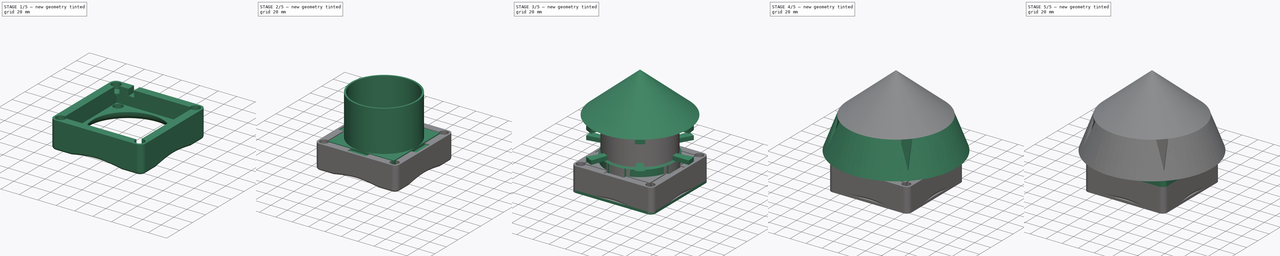
[diagram: build sequence overview — one tinted view per stage of 5, left to right]
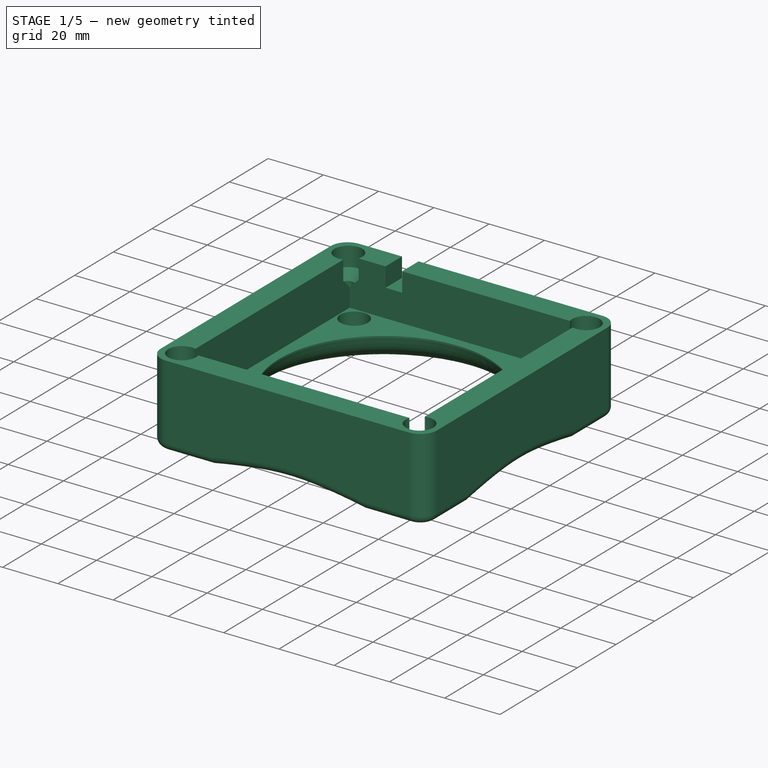
[diagram: stage 1 of 5 — iso view after this stage's code; geometry added in this stage tinted green]
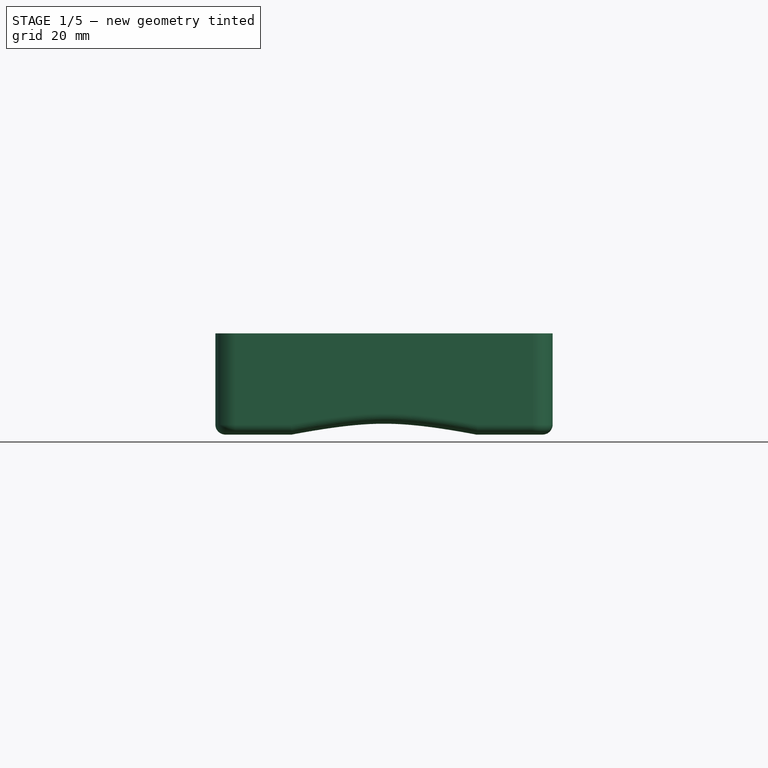
[diagram: stage 1 of 5 — front view after this stage's code; geometry added in this stage tinted green]
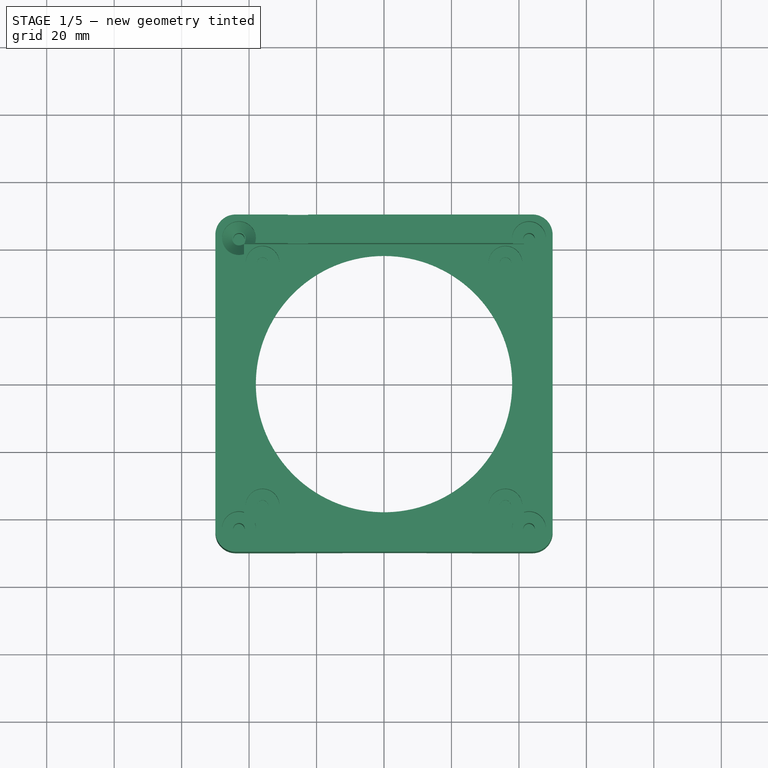
[diagram: stage 1 of 5 — top view after this stage's code; geometry added in this stage tinted green]
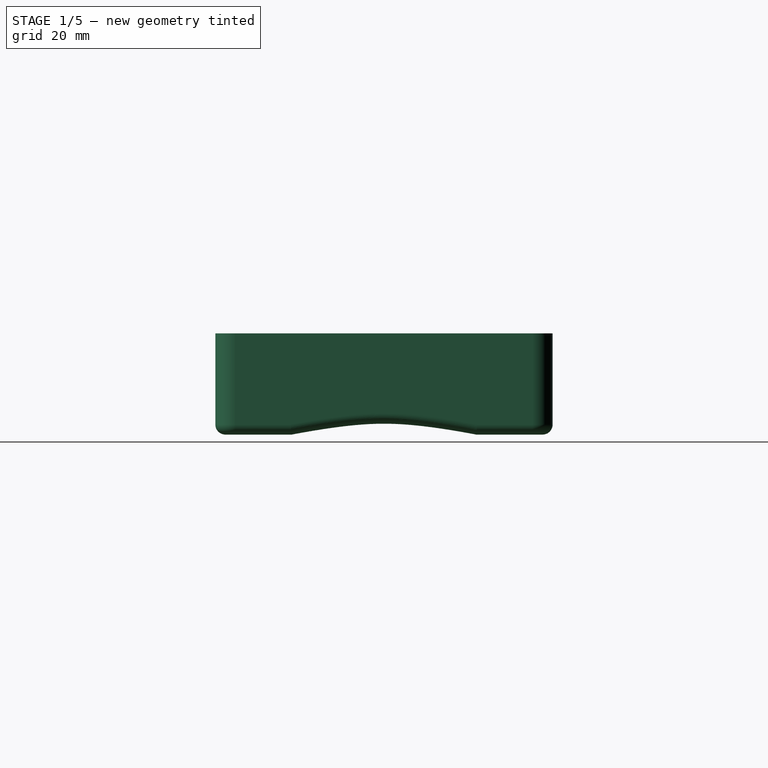
[diagram: stage 1 of 5 — right view after this stage's code; geometry added in this stage tinted green]
FCSTD DOCUMENT  (FreeCAD 0.19R)
Label: air-fan-income
License: All rights reserved
LicenseURL: http://en.wikipedia.org/wiki/All_rights_reserved
objects: Sketcher::SketchObject×36, PartDesign::Pocket×16, PartDesign::Pad×10, PartDesign::Chamfer×8, PartDesign::PolarPattern×7, PartDesign::Fillet×6, PartDesign::Body×6, PartDesign::Revolution×5, Part::Loft×2, Part::Cut×1, PartDesign::FeatureBase×1, PartDesign::Groove×1
note: 145 computed .brp shape members not serialized (recipe doc carries the construction recipe); baked Part::Feature solids carry a one-line shape summary decoded from their .brp

FEATURE [PartDesign::Body] Body001  label="top"
  Group = -> [Sketch006,Pad002,Sketch007,Pad003,Sketch019,Pad010,Fillet001,Sketch020,Pocket004,Chamfer,Chamfer002,Sketch021,Revolution,PolarPattern,Sketch022,Revolution004,PolarPattern006,Sketch023,Revolution005,Sketch024,Pad011,Sketch030,Pocket006]
  Origin = -> Origin001
  Placement = pos=(0,0,40) rot=(0,0,1;0rad)
  Tip = -> Pocket006
FEATURE [Sketcher::SketchObject] Sketch031
  FullyConstrained = false
  MapMode = 5
  Support = -> [XY_Plane004]
  sketch-geometry (4):
    g0: LineSegment StartX=-50 StartY=50 StartZ=0 EndX=50 EndY=50 EndZ=0
    g1: LineSegment StartX=50 StartY=50 StartZ=0 EndX=50 EndY=-50 EndZ=0
    g2: LineSegment StartX=50 StartY=-50 StartZ=0 EndX=-50 EndY=-50 EndZ=0
    g3: LineSegment StartX=-50 StartY=-50 StartZ=0 EndX=-50 EndY=50 EndZ=0
  constraints (11):
    c: Coincident(g0,g1)
    c: Coincident(g1,g2)
    c: Coincident(g2,g3)
    c: Coincident(g3,g0)
    c: Horizontal(g0)
    c: Horizontal(g2)
    c: Vertical(g1)
    c: Vertical(g3)
    c: DistanceX(g0,g0) = 100
    c: DistanceY(g1,g1) = 100
    c: Symmetric(g0,g1,g-1)
FEATURE [PartDesign::Pad] Pad012
  AllowMultiFace = false
  Direction = (1,1,1)
  Length = 30
  Length2 = 100
  Profile = -> Sketch031
  Reversed = true
  Type = 0
FEATURE [PartDesign::Fillet] Fillet002
  Base = -> Pad012 [Edge1,Edge2,Edge5,Edge8]
  BaseFeature = -> Pad012
  Radius = 6
  SupportTransform = false
FEATURE [Sketcher::SketchObject] Sketch032
  FullyConstrained = false
  MapMode = 5
  Placement = pos=(0,0,-30) rot=(1,0,0;3.14159rad)
  Support = -> [Fillet002]
  sketch-geometry (1):
    g0: Circle CenterX=0 CenterY=0 CenterZ=0 NormalX=0 NormalY=0 NormalZ=1 AngleXU=0 Radius=38
  constraints (2):
    c: Coincident(g0,g-1)
    c: Diameter(g0) = 76
FEATURE [PartDesign::Pocket] Pocket007
  AllowMultiFace = false
  BaseFeature = -> Fillet002
  Length = 30
  Length2 = 100
  Profile = -> Sketch032
  Type = 0
FEATURE [PartDesign::Body] Body005  label="cup-support"
  Group = -> [Sketch040,Pad013,Sketch041,Pocket014,Sketch044,Pocket017]
  Origin = -> Origin005
  Tip = -> Pocket017
FEATURE [Sketcher::SketchObject] Sketch045
  FullyConstrained = false
  MapMode = 5
  Support = -> [Pocket007]
  sketch-geometry (4):
    g0: LineSegment StartX=-41.5 StartY=41.5 StartZ=0 EndX=41.5 EndY=41.5 EndZ=0
    g1: LineSegment StartX=41.5 StartY=41.5 StartZ=0 EndX=41.5 EndY=-41.5 EndZ=0
    g2: LineSegment StartX=41.5 StartY=-41.5 StartZ=0 EndX=-41.5 EndY=-41.5 EndZ=0
    g3: LineSegment StartX=-41.5 StartY=-41.5 StartZ=0 EndX=-41.5 EndY=41.5 EndZ=0
  constraints (11):
    c: Coincident(g0,g1)
    c: Coincident(g1,g2)
    c: Coincident(g2,g3)
    c: Coincident(g3,g0)
    c: Horizontal(g0)
    c: Horizontal(g2)
    c: Vertical(g1)
    c: Vertical(g3)
    c: Symmetric(g1,g0,g-1)
    c: Distance(g0) = 83
    c: Distance(g1) = 83
FEATURE [PartDesign::Pocket] Pocket018
  AllowMultiFace = false
  BaseFeature = -> Pocket007
  Length = 17
  Length2 = 100
  Profile = -> Sketch045
  Type = 0
FEATURE [Sketcher::SketchObject] Sketch046
  FullyConstrained = false
  MapMode = 5
  Support = -> [Pocket018]
  sketch-geometry (8):
    g0: Circle CenterX=-43 CenterY=43 CenterZ=0 NormalX=0 NormalY=0 NormalZ=1 AngleXU=0 Radius=1.7
    g1: Circle CenterX=-36 CenterY=36 CenterZ=0 NormalX=0 NormalY=0 NormalZ=1 AngleXU=0 Radius=1.7
    g2: Circle CenterX=36 CenterY=36 CenterZ=0 NormalX=0 NormalY=0 NormalZ=1 AngleXU=0 Radius=1.7
    g3: Circle CenterX=43 CenterY=43 CenterZ=0 NormalX=0 NormalY=0 NormalZ=1 AngleXU=0 Radius=1.7
    g4: Circle CenterX=36 CenterY=-36 CenterZ=0 NormalX=0 NormalY=0 NormalZ=1 AngleXU=0 Radius=1.7
    g5: Circle CenterX=43 CenterY=-43 CenterZ=0 NormalX=0 NormalY=0 NormalZ=1 AngleXU=0 Radius=1.7
    g6: Circle CenterX=-36 CenterY=-36 CenterZ=0 NormalX=0 NormalY=0 NormalZ=1 AngleXU=0 Radius=1.7
    g7: Circle CenterX=-43 CenterY=-43 CenterZ=0 NormalX=0 NormalY=0 NormalZ=1 AngleXU=0 Radius=1.7
  constraints (24):
    c: DistanceX(g1,g-1) = 36
    c: DistanceY(g-1,g1) = 36
    c: DistanceY(g-1,g2) = 36
    c: DistanceY(g4,g-1) = 36
    c: DistanceY(g6,g-1) = 36
    c: DistanceX(g6,g-1) = 36
    c: DistanceX(g-1,g4) = 36
    c: DistanceX(g-1,g2) = 36
    c: DistanceX(g0,g1) = 7
    c: DistanceY(g1,g0) = 7
    c: DistanceY(g2,g3) = 7
    c: DistanceY(g5,g4) = 7
    c: DistanceY(g7,g6) = 7
    c: DistanceX(g7,g6) = 7
    c: DistanceX(g4,g5) = 7
    c: DistanceX(g2,g3) = 7
    c: Diameter(g3) = 3.4
    c: Diameter(g2) = 3.4
    c: Diameter(g4) = 3.4
    c: Diameter(g5) = 3.4
    c: Diameter(g6) = 3.4
    c: Diameter(g7) = 3.4
    c: Diameter(g1) = 3.4
    c: Diameter(g0) = 3.4
FEATURE [PartDesign::Pocket] Pocket019
  AllowMultiFace = false
  BaseFeature = -> Pocket018
  Length = 27
  Length2 = 100
  Profile = -> Sketch046
  Type = 0
FEATURE [Sketcher::SketchObject] Sketch047
  ExternalGeometry = -> [Pocket019]
  FullyConstrained = false
  MapMode = 5
  Support = -> [Pocket019]
  sketch-geometry (4):
    g0: Circle CenterX=-43 CenterY=-43 CenterZ=0 NormalX=0 NormalY=0 NormalZ=1 AngleXU=0 Radius=5
    g1: Circle CenterX=43 CenterY=-43 CenterZ=0 NormalX=0 NormalY=0 NormalZ=1 AngleXU=0 Radius=5
    g2: Circle CenterX=43 CenterY=43 CenterZ=0 NormalX=0 NormalY=0 NormalZ=1 AngleXU=0 Radius=5
    g3: Circle CenterX=-43 CenterY=43 CenterZ=0 NormalX=0 NormalY=0 NormalZ=1 AngleXU=0 Radius=5
  constraints (8):
    c: Coincident(g0,g-6)
    c: Coincident(g1,g-5)
    c: Coincident(g2,g-4)
    c: Coincident(g3,g-3)
    c: Diameter(g0) = 10
    c: Diameter(g1) = 10
    c: Diameter(g2) = 10
    c: Diameter(g3) = 10
FEATURE [PartDesign::Pocket] Pocket020
  AllowMultiFace = false
  BaseFeature = -> Pocket019
  Length = 10
  Length2 = 100
  Profile = -> Sketch047
  Type = 0
FEATURE [Sketcher::SketchObject] Sketch048
  ExternalGeometry = -> [Pocket020]
  FullyConstrained = false
  MapMode = 5
  Placement = pos=(0,0,-17) rot=(0,0,1;0rad)
  Support = -> [Pocket020]
  sketch-geometry (4):
    g0: Circle CenterX=-36 CenterY=36 CenterZ=0 NormalX=0 NormalY=0 NormalZ=1 AngleXU=0 Radius=5
    g1: Circle CenterX=36 CenterY=36 CenterZ=0 NormalX=0 NormalY=0 NormalZ=1 AngleXU=0 Radius=5
    g2: Circle CenterX=36 CenterY=-36 CenterZ=0 NormalX=0 NormalY=0 NormalZ=1 AngleXU=0 Radius=5
    g3: Circle CenterX=-36 CenterY=-36 CenterZ=0 NormalX=0 NormalY=0 NormalZ=1 AngleXU=0 Radius=5
  constraints (8):
    c: Coincident(g0,g-3)
    c: Coincident(g1,g-4)
    c: Coincident(g2,g-5)
    c: Coincident(g3,g-6)
    c: Diameter(g3) = 10
    c: Diameter(g2) = 10
    c: Diameter(g0) = 10
    c: Diameter(g1) = 10
FEATURE [PartDesign::Pocket] Pocket021
  AllowMultiFace = false
  BaseFeature = -> Pocket020
  Length = 7
  Length2 = 100
  Profile = -> Sketch048
  Type = 0
FEATURE [Sketcher::SketchObject] Sketch049
  ExternalGeometry = -> [Pocket021]
  FullyConstrained = false
  MapMode = 5
  Support = -> [Pocket021]
  sketch-geometry (4):
    g0: LineSegment StartX=-28.5 StartY=50 StartZ=0 EndX=-22.5 EndY=50 EndZ=0
    g1: LineSegment StartX=-22.5 StartY=50 StartZ=0 EndX=-22.5 EndY=41.5 EndZ=0
    g2: LineSegment StartX=-22.5 StartY=41.5 StartZ=0 EndX=-28.5 EndY=41.5 EndZ=0
    g3: LineSegment StartX=-28.5 StartY=41.5 StartZ=0 EndX=-28.5 EndY=50 EndZ=0
  constraints (12):
    c: Coincident(g0,g1)
    c: Coincident(g1,g2)
    c: Coincident(g2,g3)
    c: Coincident(g3,g0)
    c: Horizontal(g0)
    c: Horizontal(g2)
    c: Vertical(g1)
    c: Vertical(g3)
    c: PointOnObject(g0,g-4)
    c: PointOnObject(g1,g-5)
    c: DistanceX(g2,g2) = 6
    c: DistanceX(g-6,g1) = 19
FEATURE [PartDesign::Pocket] Pocket022
  AllowMultiFace = false
  BaseFeature = -> Pocket021
  Length = 7
  Length2 = 100
  Profile = -> Sketch049
  Type = 0
FEATURE [Sketcher::SketchObject] Sketch050
  AttachmentOffset = pos=(0,0,0) rot=(0,1,0;0.785398rad)
  FullyConstrained = false
  MapMode = 5
  Placement = pos=(0,0,0) rot=(0.862856,0.357407,0.357407;1.71777rad)
  Support = -> [XZ_Plane004]
  sketch-geometry (17):
    g0-g6: Circle x7 (B-spline internal-alignment scaffolding for g7; pole/knot coordinates omitted)
    g7: BSplineCurve PolesCount=7 KnotsCount=5 Degree=3 IsPeriodic=0
    g8-g12: GeomPoint x5 (B-spline internal-alignment scaffolding for g7; pole/knot coordinates omitted)
    g13: LineSegment StartX=-55.2515 StartY=-30.4636 StartZ=0 EndX=-24.8297 EndY=-40.4815 EndZ=0
    g14: LineSegment StartX=-24.8297 StartY=-40.4815 StartZ=0 EndX=-17.5661 EndY=-26.0281 EndZ=0
    g15: LineSegment StartX=-17.5661 StartY=-26.0281 StartZ=0 EndX=-31.5153 EndY=-13.5349 EndZ=0
    g16: LineSegment StartX=-31.5153 StartY=-13.5349 StartZ=0 EndX=-37.3688 EndY=-15.3042 EndZ=0
  constraints (9):
    c: Weight(g0) = 1
    c: Equal(g0, g1-g6) x6
    c: InternalAlignment(g0-g6 -> g7) x7
    c: InternalAlignment(g8-g12 -> g7) x5
    c: Coincident(g13,g7)
    c: Coincident(g13,g14)
    c: Coincident(g14,g15)
    c: Coincident(g15,g16)
    c: Coincident(g16,g7)
FEATURE [PartDesign::Groove] Groove
  AllowMultiFace = false
  Angle = 360
  Axis = (0,-2e-16,1)
  Base = (0,0,0)
  BaseFeature = -> Pocket022
  Profile = -> Sketch050
  ReferenceAxis = -> Sketch050 [V_Axis]
  Reversed = true
FEATURE [PartDesign::Fillet] Fillet003
  Base = -> Groove [Edge55,Edge46,Edge53,Edge8,Edge7,Edge48,Edge64,Edge50]
  BaseFeature = -> Groove
  Radius = 3
  SupportTransform = false
FEATURE [PartDesign::Chamfer] Chamfer003
  Angle = 45
  Base = -> Fillet003 [Edge104]
  BaseFeature = -> Fillet003
  ChamferType = 0
  FlipDirection = false
  Size = 3
  Size2 = 1
  SupportTransform = false
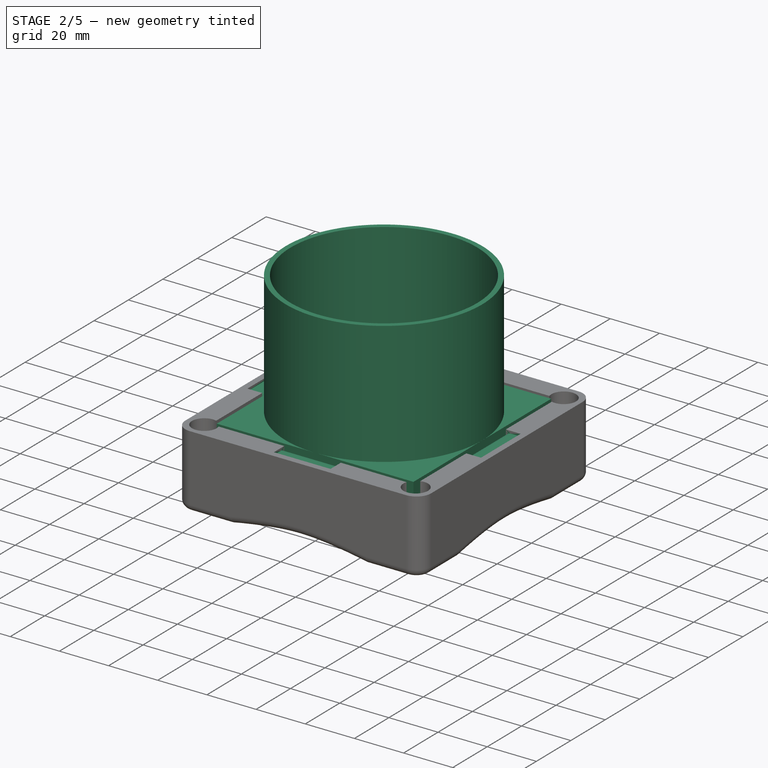
[diagram: stage 2 of 5 — iso view after this stage's code; geometry added in this stage tinted green]
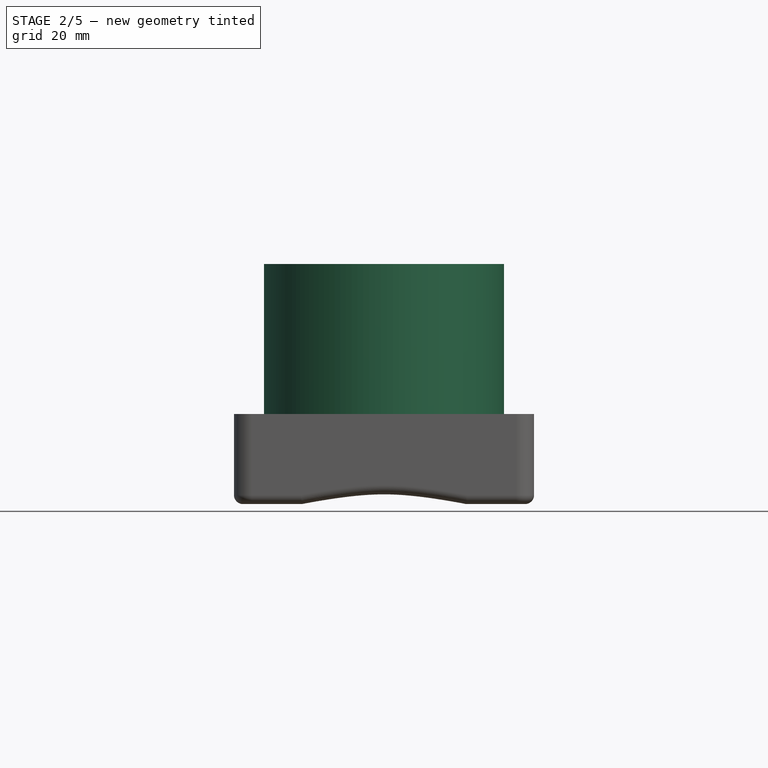
[diagram: stage 2 of 5 — front view after this stage's code; geometry added in this stage tinted green]
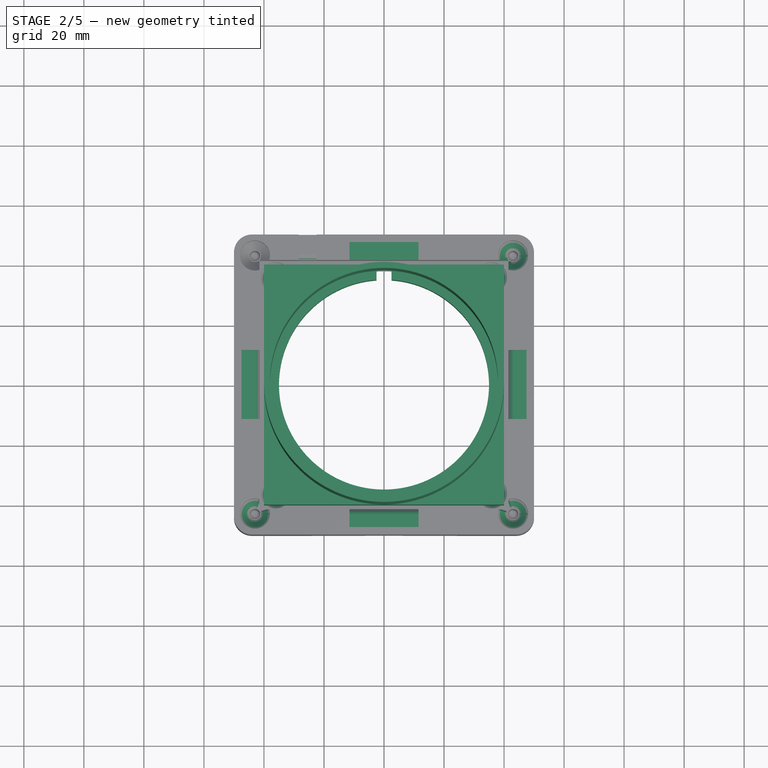
[diagram: stage 2 of 5 — top view after this stage's code; geometry added in this stage tinted green]
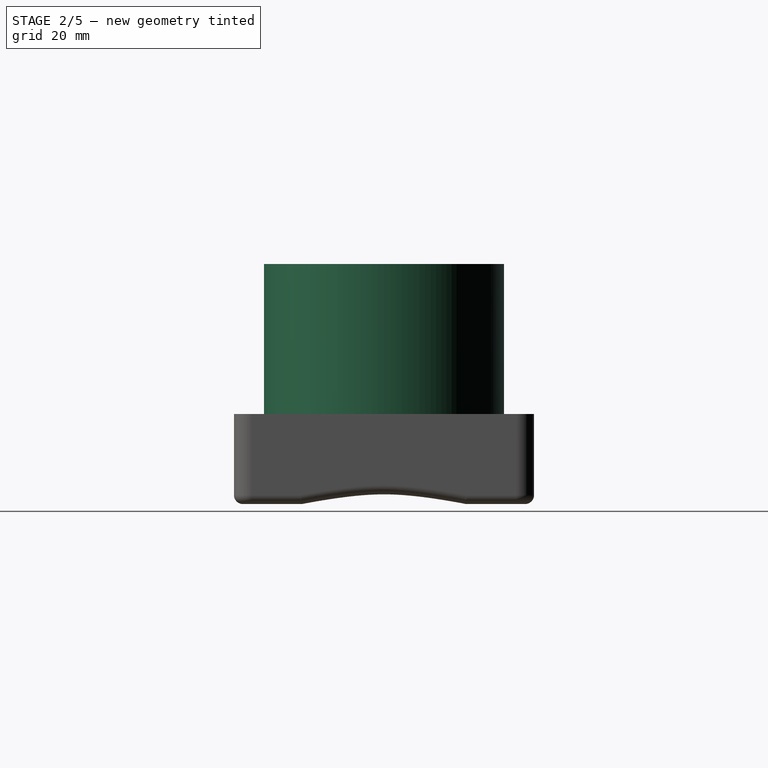
[diagram: stage 2 of 5 — right view after this stage's code; geometry added in this stage tinted green]
FEATURE [Sketcher::SketchObject] Sketch006
  FullyConstrained = false
  MapMode = 5
  Support = -> [XY_Plane001]
  sketch-geometry (2):
    g0: Circle CenterX=0 CenterY=0 CenterZ=0 NormalX=0 NormalY=0 NormalZ=1 AngleXU=0 Radius=40
    g1: Circle CenterX=0 CenterY=0 CenterZ=0 NormalX=0 NormalY=0 NormalZ=1 AngleXU=0 Radius=38
  constraints (4):
    c: Coincident(g0,g-1)
    c: Coincident(g1,g0)
    c: Diameter(g1) = 76
    c: Diameter(g0) = 80
FEATURE [PartDesign::Pad] Pad002
  AllowMultiFace = false
  Direction = (1,1,1)
  Length = 50
  Length2 = 100
  Profile = -> Sketch006
  Type = 0
FEATURE [Sketcher::SketchObject] Sketch040
  FullyConstrained = false
  MapMode = 5
  Support = -> [XY_Plane005]
  sketch-geometry (4):
    g0: LineSegment StartX=-40 StartY=40 StartZ=0 EndX=40 EndY=40 EndZ=0
    g1: LineSegment StartX=40 StartY=40 StartZ=0 EndX=40 EndY=-40 EndZ=0
    g2: LineSegment StartX=40 StartY=-40 StartZ=0 EndX=-40 EndY=-40 EndZ=0
    g3: LineSegment StartX=-40 StartY=-40 StartZ=0 EndX=-40 EndY=40 EndZ=0
  constraints (11):
    c: Coincident(g0,g1)
    c: Coincident(g1,g2)
    c: Coincident(g2,g3)
    c: Coincident(g3,g0)
    c: Horizontal(g0)
    c: Horizontal(g2)
    c: Vertical(g1)
    c: Vertical(g3)
    c: Symmetric(g1,g0,g-1)
    c: DistanceX(g0,g0) = 80
    c: DistanceY(g1,g1) = 80
FEATURE [PartDesign::Pad] Pad013
  AllowMultiFace = false
  Direction = (1,1,1)
  Length = 17
  Length2 = 100
  Profile = -> Sketch040
  Reversed = true
  Type = 0
FEATURE [Sketcher::SketchObject] Sketch041
  FullyConstrained = false
  MapMode = 5
  Placement = pos=(0,0,-17) rot=(1,0,0;3.14159rad)
  Support = -> [Pad013]
  sketch-geometry (1):
    g0: Circle CenterX=0 CenterY=0 CenterZ=0 NormalX=0 NormalY=0 NormalZ=1 AngleXU=0 Radius=35
  constraints (2):
    c: Coincident(g0,g-1)
    c: Radius(g0) = 35
FEATURE [PartDesign::Pocket] Pocket014
  AllowMultiFace = false
  BaseFeature = -> Pad013
  Length = 20
  Length2 = 100
  Profile = -> Sketch041
  Type = 0
FEATURE [Sketcher::SketchObject] Sketch044
  FullyConstrained = false
  MapMode = 5
  Placement = pos=(0,0,-17) rot=(1,0,0;3.14159rad)
  Support = -> [Pocket014]
  sketch-geometry (4):
    g0: LineSegment StartX=-2.5 StartY=-31.0603 StartZ=0 EndX=2.5 EndY=-31.0603 EndZ=0
    g1: LineSegment StartX=2.5 StartY=-31.0603 StartZ=0 EndX=2.5 EndY=-51.2409 EndZ=0
    g2: LineSegment StartX=2.5 StartY=-51.2409 StartZ=0 EndX=-2.5 EndY=-51.2409 EndZ=0
    g3: LineSegment StartX=-2.5 StartY=-51.2409 StartZ=0 EndX=-2.5 EndY=-31.0603 EndZ=0
  constraints (9):
    c: Coincident(g0,g1)
    c: Coincident(g1,g2)
    c: Coincident(g2,g3)
    c: Coincident(g3,g0)
    c: Horizontal(g2)
    c: Vertical(g1)
    c: Vertical(g3)
    c: DistanceX(g0,g0) = 5
    c: Symmetric(g0,g0,g-2)
FEATURE [PartDesign::Pocket] Pocket017
  AllowMultiFace = false
  BaseFeature = -> Pocket014
  Length = 24
  Length2 = 100
  Profile = -> Sketch044
  Type = 0
FEATURE [PartDesign::Chamfer] Chamfer004
  Angle = 45
  Base = -> Chamfer003 [Edge69]
  BaseFeature = -> Chamfer003
  ChamferType = 0
  FlipDirection = false
  Size = 3
  Size2 = 1
  SupportTransform = false
FEATURE [PartDesign::Chamfer] Chamfer005
  Angle = 45
  Base = -> Chamfer004 [Edge87]
  BaseFeature = -> Chamfer004
  ChamferType = 0
  FlipDirection = false
  Size = 3
  Size2 = 1
  SupportTransform = false
FEATURE [PartDesign::Chamfer] Chamfer006
  Angle = 45
  Base = -> Chamfer005 [Edge86]
  BaseFeature = -> Chamfer005
  ChamferType = 0
  FlipDirection = false
  Size = 3
  Size2 = 1
  SupportTransform = false
FEATURE [PartDesign::Chamfer] Chamfer007
  Angle = 45
  Base = -> Chamfer006 [Edge132,Edge130,Edge134,Edge139]
  BaseFeature = -> Chamfer006
  ChamferType = 0
  FlipDirection = false
  Size = 3
  Size2 = 1
  SupportTransform = false
FEATURE [PartDesign::Fillet] Fillet004
  Base = -> Chamfer007 [Face87,Face95,Face74,Face94,Face88,Face42,Face89,Face93]
  BaseFeature = -> Chamfer007
  Radius = 1.4
  SupportTransform = false
FEATURE [Sketcher::SketchObject] Sketch051
  ExternalGeometry = -> [Fillet004]
  FullyConstrained = false
  MapMode = 5
  Support = -> [Fillet004]
  sketch-geometry (4):
    g0: LineSegment StartX=-47.5 StartY=11.5 StartZ=0 EndX=-31.2586 EndY=11.5 EndZ=0
    g1: LineSegment StartX=-31.2586 StartY=11.5 StartZ=0 EndX=-31.2586 EndY=-11.5 EndZ=0
    g2: LineSegment StartX=-31.2586 StartY=-11.5 StartZ=0 EndX=-47.5 EndY=-11.5 EndZ=0
    g3: LineSegment StartX=-47.5 StartY=-11.5 StartZ=0 EndX=-47.5 EndY=11.5 EndZ=0
  constraints (10):
    c: Coincident(g0,g1)
    c: Coincident(g1,g2)
    c: Coincident(g2,g3)
    c: Coincident(g3,g0)
    c: Horizontal(g0)
    c: Horizontal(g2)
    c: Vertical(g1)
    c: Symmetric(g0,g2,g-1)
    c: DistanceY(g3,g3) = 23
    c: DistanceX(g0,g-3) = 6
FEATURE [PartDesign::Pocket] Pocket023
  AllowMultiFace = false
  BaseFeature = -> Fillet004
  Length = 1
  Length2 = 100
  Profile = -> Sketch051
  Type = 0
FEATURE [PartDesign::PolarPattern] PolarPattern008
  Angle = 360
  Axis = -> Z_Axis004
  BaseFeature = -> Pocket023
  Occurrences = 4
  Originals = -> [Pocket023]
FEATURE [PartDesign::Fillet] Fillet005
  Base = -> PolarPattern008 [Edge27,Edge63,Edge43,Edge56]
  BaseFeature = -> PolarPattern008
  Radius = 2
  SupportTransform = false
FEATURE [PartDesign::Body] Body004  label="cap"
  Group = -> [Sketch031,Pad012,Fillet002,Sketch032,Pocket007,Sketch045,Pocket018,Sketch046,Pocket019,Sketch047,Pocket020,Sketch048,Pocket021,Sketch049,Pocket022,Sketch050,Groove,Fillet003,Chamfer003,Chamfer004,Chamfer005,Chamfer006,Chamfer007,Fillet004,Sketch051,Pocket023,PolarPattern008,Fillet005]
  Origin = -> Origin004
  Tip = -> Fillet005
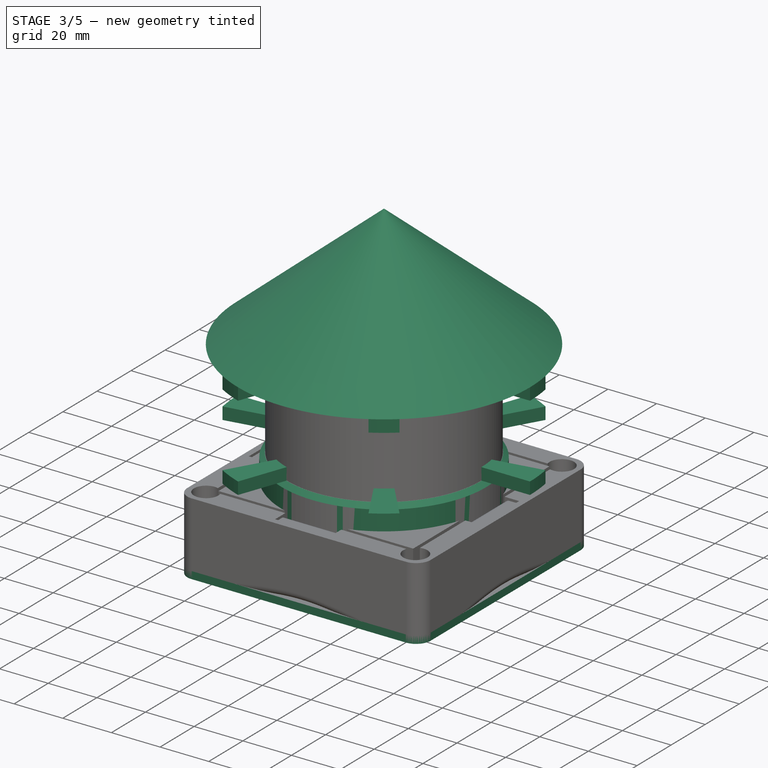
[diagram: stage 3 of 5 — iso view after this stage's code; geometry added in this stage tinted green]
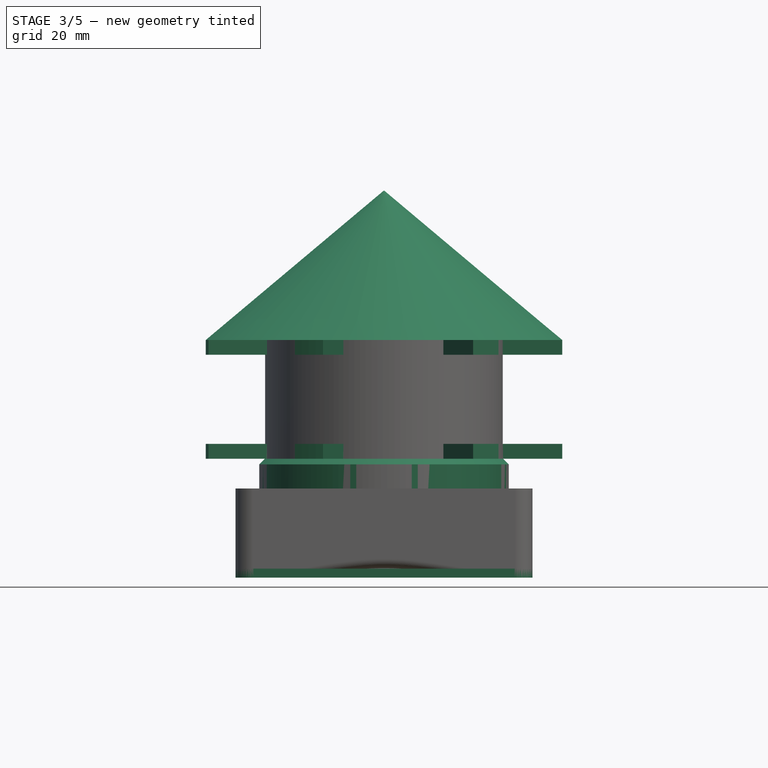
[diagram: stage 3 of 5 — front view after this stage's code; geometry added in this stage tinted green]
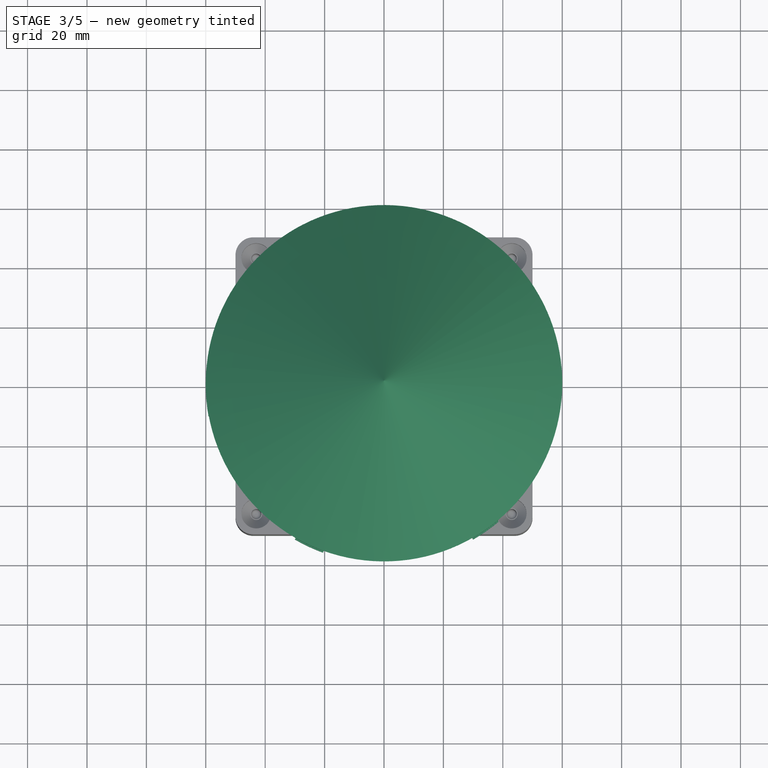
[diagram: stage 3 of 5 — top view after this stage's code; geometry added in this stage tinted green]
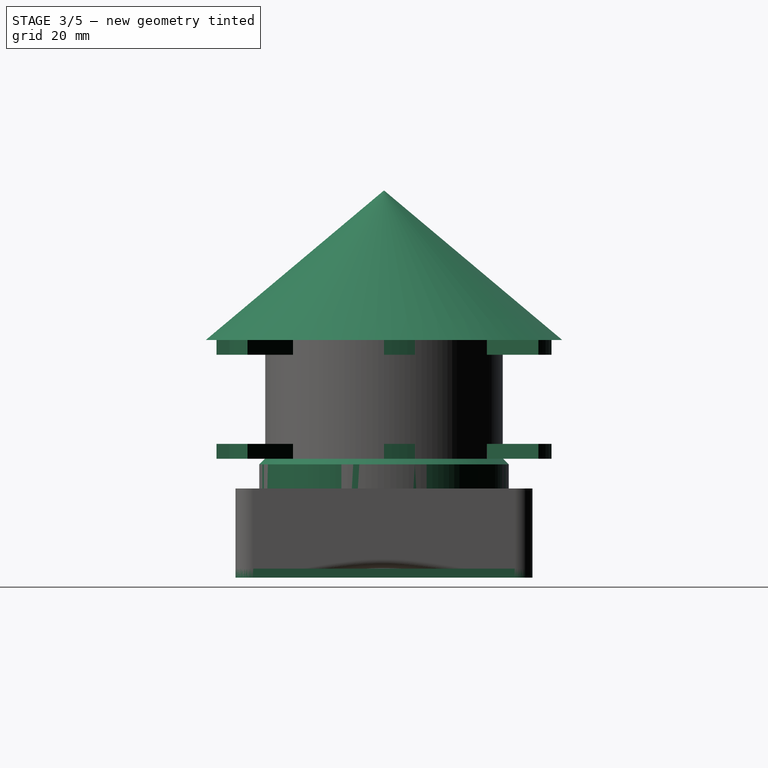
[diagram: stage 3 of 5 — right view after this stage's code; geometry added in this stage tinted green]
FEATURE [Sketcher::SketchObject] Sketch007
  AttachmentOffset = pos=(0,0,-10) rot=(0,0,1;0rad)
  FullyConstrained = false
  MapMode = 5
  Placement = pos=(0,0,10) rot=(1,0,0;3.14159rad)
  Support = -> [Pad002]
  sketch-geometry (2):
    g0: Circle CenterX=0 CenterY=0 CenterZ=0 NormalX=0 NormalY=0 NormalZ=1 AngleXU=0 Radius=42
    g1: Circle CenterX=0 CenterY=0 CenterZ=0 NormalX=0 NormalY=0 NormalZ=1 AngleXU=0 Radius=40
  constraints (4):
    c: Coincident(g0,g-1)
    c: Coincident(g1,g0)
    c: Diameter(g0) = 84
    c: Diameter(g1) = 80
FEATURE [PartDesign::Pad] Pad003
  AllowMultiFace = false
  BaseFeature = -> Pad002
  Direction = (1,1,1)
  Length = 40
  Length2 = 100
  Profile = -> Sketch007
  Type = 0
FEATURE [PartDesign::Body] Body002  label="filter"
  Group = -> [Sketch015,Pad008,Sketch016,Pad009,PolarPattern003,Sketch017,Revolution002,Sketch018,PolarPattern004,Revolution003,PolarPattern005,Chamfer001]
  Origin = -> Origin002
  Placement = pos=(0,0,42) rot=(0,0,1;0.174533rad)
  Tip = -> Chamfer001
FEATURE [Sketcher::SketchObject] Sketch019
  FullyConstrained = false
  MapMode = 5
  Placement = pos=(0,0,-30) rot=(1,0,0;3.14159rad)
  Support = -> [Pad003]
  sketch-geometry (5):
    g0: LineSegment StartX=-50 StartY=50 StartZ=0 EndX=50 EndY=50 EndZ=0
    g1: LineSegment StartX=50 StartY=50 StartZ=0 EndX=50 EndY=-50 EndZ=0
    g2: LineSegment StartX=50 StartY=-50 StartZ=0 EndX=-50 EndY=-50 EndZ=0
    g3: LineSegment StartX=-50 StartY=-50 StartZ=0 EndX=-50 EndY=50 EndZ=0
    g4: Circle CenterX=0 CenterY=0 CenterZ=0 NormalX=0 NormalY=0 NormalZ=1 AngleXU=0 Radius=40
  constraints (14):
    c: Coincident(g0,g1)
    c: Coincident(g1,g2)
    c: Coincident(g2,g3)
    c: Coincident(g3,g0)
    c: Horizontal(g0)
    c: Horizontal(g2)
    c: Vertical(g1)
    c: Vertical(g3)
    c: Coincident(g4,g-1)
    c: DistanceX(g0,g0) = 100
    c: DistanceX(g0,g4) = 50
    c: DistanceY(g1,g1) = 100
    c: DistanceY(g4,g0) = 50
    c: Diameter(g4) = 80
FEATURE [PartDesign::Pad] Pad010
  AllowMultiFace = false
  BaseFeature = -> Pad003
  Direction = (1,1,1)
  Length = 3
  Length2 = 100
  Profile = -> Sketch019
  Reversed = true
  Type = 0
FEATURE [PartDesign::Fillet] Fillet001
  Base = -> Pad010 [Edge18,Edge15,Edge16,Edge20]
  BaseFeature = -> Pad010
  Radius = 6
  SupportTransform = false
FEATURE [Sketcher::SketchObject] Sketch020
  FullyConstrained = false
  MapMode = 5
  Placement = pos=(0,0,-30) rot=(1,0,0;3.14159rad)
  Support = -> [Fillet001]
  sketch-geometry (4):
    g0: Circle CenterX=-43 CenterY=43 CenterZ=0 NormalX=0 NormalY=0 NormalZ=1 AngleXU=0 Radius=3
    g1: Circle CenterX=43 CenterY=43 CenterZ=0 NormalX=0 NormalY=0 NormalZ=1 AngleXU=0 Radius=3
    g2: Circle CenterX=43 CenterY=-43 CenterZ=0 NormalX=0 NormalY=0 NormalZ=1 AngleXU=0 Radius=3
    g3: Circle CenterX=-43 CenterY=-43 CenterZ=0 NormalX=0 NormalY=0 NormalZ=1 AngleXU=0 Radius=3
  constraints (12):
    c: Diameter(g3) = 6
    c: Diameter(g2) = 6
    c: Diameter(g1) = 6
    c: Diameter(g0) = 6
    c: DistanceX(g0,g-1) = 43
    c: DistanceX(g3,g-1) = 43
    c: DistanceX(g-1,g1) = 43
    c: DistanceX(g-1,g2) = 43
    c: DistanceY(g-1,g0) = 43
    c: DistanceY(g-1,g1) = 43
    c: DistanceY(g3,g-1) = 43
    c: DistanceY(g2,g-1) = 43
FEATURE [PartDesign::Pocket] Pocket004
  AllowMultiFace = false
  BaseFeature = -> Fillet001
  Length = 3
  Length2 = 100
  Profile = -> Sketch020
  Type = 0
FEATURE [PartDesign::Chamfer] Chamfer
  Angle = 45
  Base = -> Pocket004 [Edge51]
  BaseFeature = -> Pocket004
  ChamferType = 0
  FlipDirection = false
  Size = 1.9
  Size2 = 1
  SupportTransform = false
FEATURE [PartDesign::Chamfer] Chamfer002
  Angle = 45
  Base = -> Chamfer [Edge12]
  BaseFeature = -> Chamfer
  ChamferType = 0
  FlipDirection = false
  Size = 1.9
  Size2 = 1
  SupportTransform = false
FEATURE [Sketcher::SketchObject] Sketch021
  FullyConstrained = false
  MapMode = 5
  Placement = pos=(0,0,0) rot=(0.57735,0.57735,0.57735;2.0944rad)
  Support = -> [YZ_Plane001]
  sketch-geometry (3):
    g0: LineSegment StartX=-38 StartY=38.6603 StartZ=0 EndX=-38 EndY=30 EndZ=0
    g1: LineSegment StartX=-38 StartY=30 StartZ=0 EndX=-33 EndY=38.6603 EndZ=0
    g2: LineSegment StartX=-33 StartY=38.6603 StartZ=0 EndX=-38 EndY=38.6603 EndZ=0
  constraints (9):
    c: Vertical(g0)
    c: Coincident(g0,g1)
    c: Coincident(g1,g2)
    c: Coincident(g2,g0)
    c: Horizontal(g2)
    c: Angle(g1,g0) = 0.523599
    c: DistanceX(g2,g2) = 5
    c: DistanceX(g0,g-1) = 38
    c: DistanceY(g-1,g0) = 30
FEATURE [PartDesign::Revolution] Revolution
  AllowMultiFace = false
  Angle = 10
  Axis = (-2e-16,3e-16,1)
  Base = (0,0,0)
  BaseFeature = -> Chamfer002
  Profile = -> Sketch021
  ReferenceAxis = -> Sketch021 [V_Axis]
FEATURE [PartDesign::PolarPattern] PolarPattern
  Angle = 360
  Axis = -> Z_Axis001
  BaseFeature = -> Revolution
  Occurrences = 8
  Originals = -> [Revolution]
FEATURE [Sketcher::SketchObject] Sketch022
  FullyConstrained = false
  MapMode = 5
  Placement = pos=(0,0,0) rot=(1,0,0;1.5708rad)
  Support = -> [XZ_Plane001]
  sketch-geometry (8):
    g0: LineSegment StartX=-60 StartY=50 StartZ=0 EndX=-40 EndY=50 EndZ=0
    g1: LineSegment StartX=-40 StartY=50 StartZ=0 EndX=-40 EndY=45 EndZ=0
    g2: LineSegment StartX=-40 StartY=45 StartZ=0 EndX=-60 EndY=45 EndZ=0
    g3: LineSegment StartX=-60 StartY=45 StartZ=0 EndX=-60 EndY=50 EndZ=0
    g4: LineSegment StartX=-60 StartY=15 StartZ=0 EndX=-40 EndY=15 EndZ=0
    g5: LineSegment StartX=-40 StartY=15 StartZ=0 EndX=-40 EndY=10 EndZ=0
    g6: LineSegment StartX=-40 StartY=10 StartZ=0 EndX=-60 EndY=10 EndZ=0
    g7: LineSegment StartX=-60 StartY=10 StartZ=0 EndX=-60 EndY=15 EndZ=0
  constraints (24):
    c: Coincident(g0,g1)
    c: Coincident(g1,g2)
    c: Coincident(g2,g3)
    c: Coincident(g3,g0)
    c: Horizontal(g0)
    c: Horizontal(g2)
    c: Vertical(g1)
    c: Vertical(g3)
    c: Coincident(g4,g5)
    c: Coincident(g5,g6)
    c: Coincident(g6,g7)
    c: Coincident(g7,g4)
    c: Horizontal(g4)
    c: Horizontal(g6)
    c: Vertical(g5)
    c: Vertical(g7)
    c: DistanceY(g1,g1) = 5
    c: DistanceY(g5,g5) = 5
    c: DistanceX(g2,g4) = 0
    c: PointOnObject(g4,g1)
    c: DistanceY(g4,g1) = 30
    c: DistanceX(g5,g-1) = 40
    c: DistanceY(g-1,g5) = 10
    c: DistanceX(g6,g6) = 20
FEATURE [PartDesign::Revolution] Revolution004
  AllowMultiFace = false
  Angle = 10
  Axis = (0,-2e-16,1)
  Base = (0,0,0)
  BaseFeature = -> PolarPattern
  Profile = -> Sketch022
  ReferenceAxis = -> Sketch022 [V_Axis]
FEATURE [PartDesign::PolarPattern] PolarPattern006
  Angle = 360
  Axis = -> Z_Axis001
  BaseFeature = -> Revolution004
  Occurrences = 6
  Originals = -> [Revolution004]
FEATURE [Sketcher::SketchObject] Sketch023
  ExternalGeometry = -> [PolarPattern006]
  FullyConstrained = false
  MapMode = 5
  Placement = pos=(0,0,0) rot=(1,0,0;1.5708rad)
  Support = -> [XZ_Plane001]
  sketch-geometry (4):
    g0: LineSegment StartX=-60 StartY=50 StartZ=0 EndX=7.1e-15 EndY=100.346 EndZ=0
    g1: LineSegment StartX=7.1e-15 StartY=100.346 StartZ=0 EndX=0 EndY=98.6678 EndZ=0
    g2: LineSegment StartX=0 StartY=98.6678 StartZ=0 EndX=-58 EndY=50 EndZ=0
    g3: LineSegment StartX=-58 StartY=50 StartZ=0 EndX=-60 EndY=50 EndZ=0
  constraints (11):
    c: PointOnObject(g0,g-2)
    c: Coincident(g0,g1)
    c: PointOnObject(g1,g-2)
    c: Coincident(g1,g2)
    c: Coincident(g2,g3)
    c: Coincident(g3,g0)
    c: Horizontal(g3)
    c: Coincident(g0,g-3)
    c: DistanceX(g3,g3) = 2
    c: Parallel(g0,g2)
    c: Angle(g-3,g0) = 2.26893
FEATURE [PartDesign::Revolution] Revolution005
  AllowMultiFace = false
  Angle = 360
  Axis = (0,-2e-16,1)
  Base = (0,0,0)
  BaseFeature = -> PolarPattern006
  Profile = -> Sketch023
  ReferenceAxis = -> Sketch023 [V_Axis]
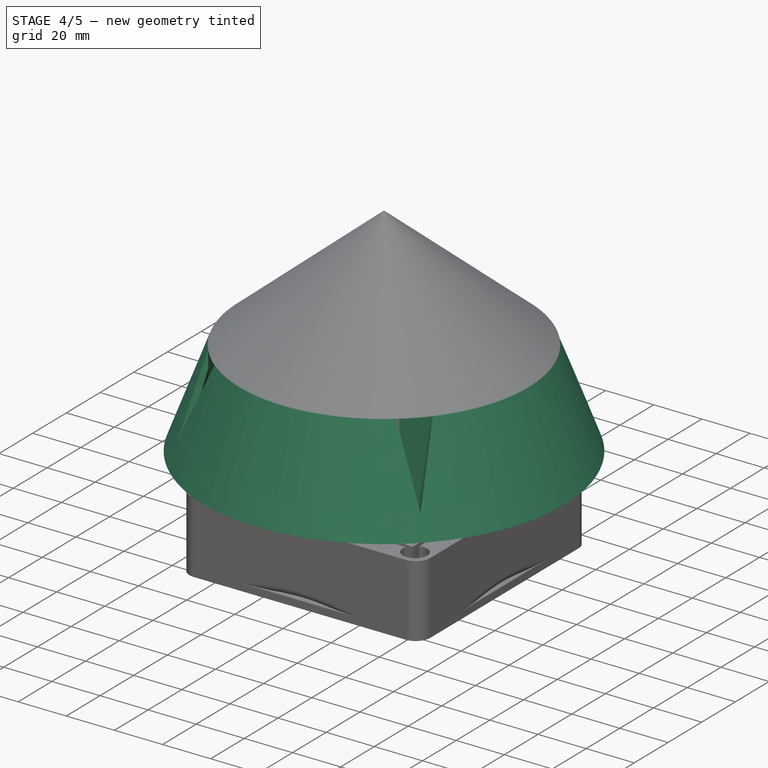
[diagram: stage 4 of 5 — iso view after this stage's code; geometry added in this stage tinted green]
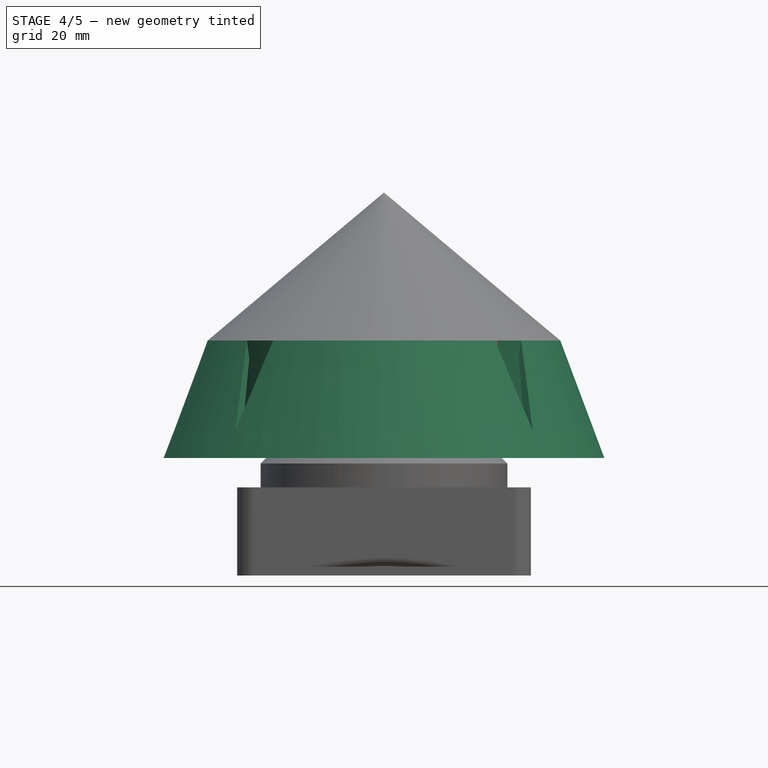
[diagram: stage 4 of 5 — front view after this stage's code; geometry added in this stage tinted green]
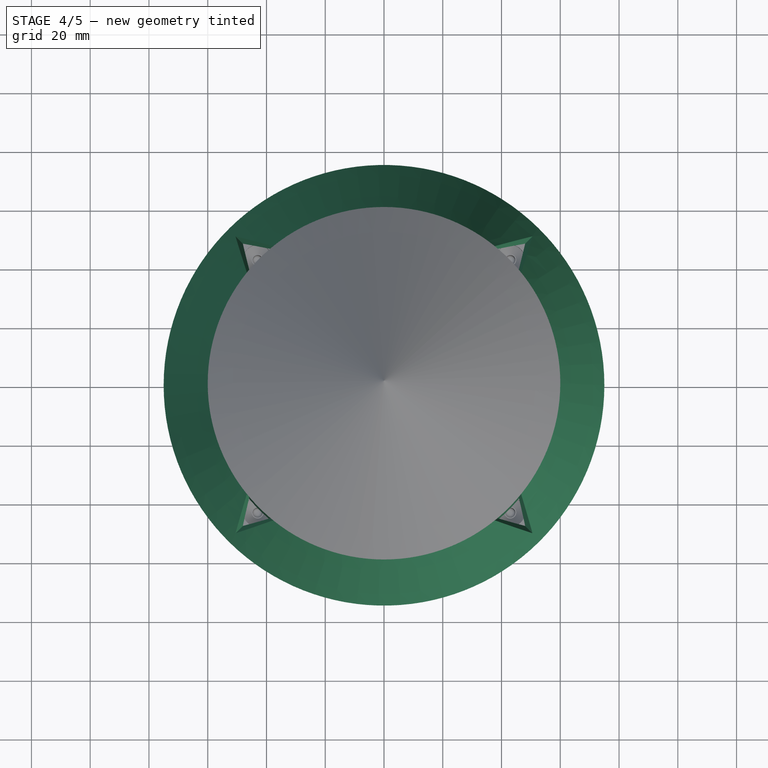
[diagram: stage 4 of 5 — top view after this stage's code; geometry added in this stage tinted green]
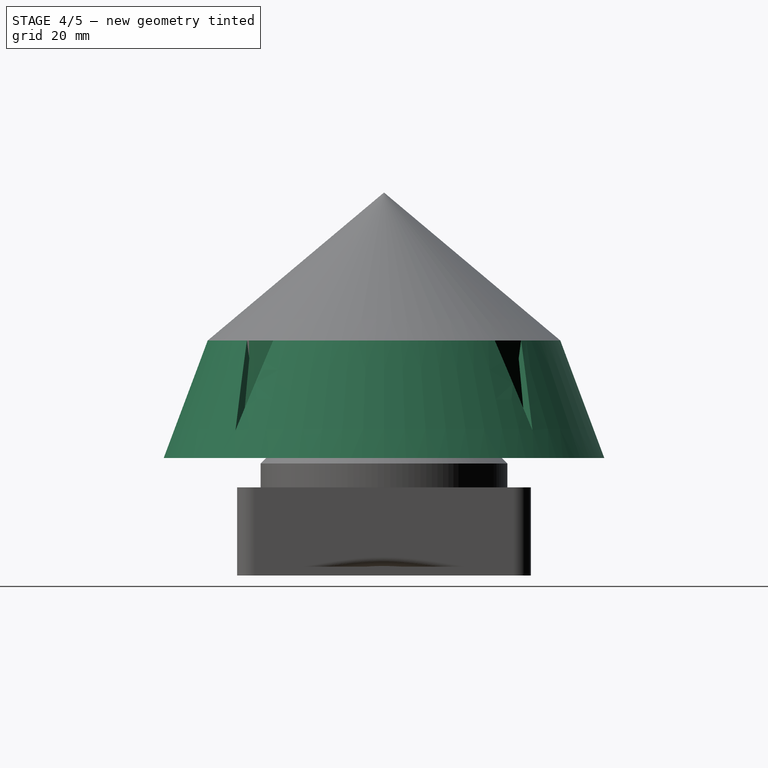
[diagram: stage 4 of 5 — right view after this stage's code; geometry added in this stage tinted green]
FEATURE [Sketcher::SketchObject] Sketch015
  FullyConstrained = false
  MapMode = 5
  Support = -> [XY_Plane002]
  sketch-geometry (2):
    g0: Circle CenterX=0 CenterY=0 CenterZ=0 NormalX=0 NormalY=0 NormalZ=1 AngleXU=0 Radius=37
    g1: Circle CenterX=0 CenterY=0 CenterZ=0 NormalX=0 NormalY=0 NormalZ=1 AngleXU=0 Radius=35
  constraints (4):
    c: Coincident(g0,g-1)
    c: Coincident(g1,g0)
    c: Diameter(g0) = 74
    c: Diameter(g1) = 70
FEATURE [PartDesign::Pad] Pad008
  AllowMultiFace = false
  Direction = (1,1,1)
  Length = 2
  Length2 = 100
  Profile = -> Sketch015
  Type = 0
FEATURE [Sketcher::SketchObject] Sketch016
  FullyConstrained = false
  MapMode = 5
  Placement = pos=(0,0,0) rot=(1,0,0;3.14159rad)
  Support = -> [Pad008]
  sketch-geometry (4):
    g0: LineSegment StartX=-1 StartY=36 StartZ=0 EndX=1 EndY=36 EndZ=0
    g1: LineSegment StartX=1 StartY=36 StartZ=0 EndX=1 EndY=0 EndZ=0
    g2: LineSegment StartX=1 StartY=0 StartZ=0 EndX=-1 EndY=0 EndZ=0
    g3: LineSegment StartX=-1 StartY=0 StartZ=0 EndX=-1 EndY=36 EndZ=0
  constraints (12):
    c: Coincident(g0,g1)
    c: Coincident(g1,g2)
    c: Coincident(g2,g3)
    c: Coincident(g3,g0)
    c: Horizontal(g0)
    c: Horizontal(g2)
    c: Vertical(g1)
    c: Vertical(g3)
    c: PointOnObject(g1,g-1)
    c: DistanceX(g0,g0) = 2
    c: DistanceX(g2,g-1) = 1
    c: DistanceY(g1,g1) = 36
FEATURE [PartDesign::Pad] Pad009
  AllowMultiFace = false
  BaseFeature = -> Pad008
  Direction = (1,1,1)
  Length = 2
  Length2 = 100
  Profile = -> Sketch016
  Reversed = true
  Type = 0
FEATURE [PartDesign::PolarPattern] PolarPattern003
  Angle = 360
  Axis = -> Sketch016 [N_Axis]
  BaseFeature = -> Pad009
  Occurrences = 6
  Originals = -> [Pad009]
FEATURE [Sketcher::SketchObject] Sketch017
  FullyConstrained = false
  MapMode = 5
  Placement = pos=(0,0,0) rot=(0.57735,0.57735,0.57735;2.0944rad)
  Support = -> [YZ_Plane002]
  sketch-geometry (4):
    g0: LineSegment StartX=-37 StartY=42 StartZ=0 EndX=-35 EndY=42 EndZ=0
    g1: LineSegment StartX=-35 StartY=42 StartZ=0 EndX=-35 EndY=2 EndZ=0
    g2: LineSegment StartX=-35 StartY=2 StartZ=0 EndX=-37 EndY=2 EndZ=0
    g3: LineSegment StartX=-37 StartY=2 StartZ=0 EndX=-37 EndY=42 EndZ=0
  constraints (12):
    c: Coincident(g0,g1)
    c: Coincident(g1,g2)
    c: Coincident(g2,g3)
    c: Coincident(g3,g0)
    c: Horizontal(g0)
    c: Horizontal(g2)
    c: Vertical(g1)
    c: Vertical(g3)
    c: DistanceX(g0,g0) = 2
    c: DistanceY(g1,g1) = 40
    c: DistanceY(g1,g-1) = -2
    c: DistanceX(g1,g-1) = 35
FEATURE [PartDesign::Revolution] Revolution002
  AllowMultiFace = false
  Angle = 10
  Axis = (-2e-16,3e-16,1)
  Base = (0,0,0)
  BaseFeature = -> PolarPattern003
  Profile = -> Sketch017
  ReferenceAxis = -> Sketch017 [V_Axis]
FEATURE [Sketcher::SketchObject] Sketch024
  FullyConstrained = false
  MapMode = 5
  Placement = pos=(0,-1.1e-14,50) rot=(1,0,0;3.14159rad)
  Support = -> [Revolution005]
  sketch-geometry (2):
    g0: Circle CenterX=0 CenterY=0 CenterZ=0 NormalX=0 NormalY=0 NormalZ=1 AngleXU=0 Radius=60
    g1: Circle CenterX=0 CenterY=0 CenterZ=0 NormalX=0 NormalY=0 NormalZ=1 AngleXU=0 Radius=58
  constraints (4):
    c: Coincident(g0,g-1)
    c: Coincident(g1,g0)
    c: Diameter(g0) = 120
    c: Diameter(g1) = 116
FEATURE [PartDesign::Pad] Pad011
  AllowMultiFace = false
  BaseFeature = -> Revolution005
  Direction = (1,1,1)
  Length = 40
  Length2 = 100
  Profile = -> Sketch024
  Type = 0
FEATURE [Sketcher::SketchObject] Sketch025
  AttachmentOffset = pos=(0,0,10) rot=(0,0,1;0rad)
  FullyConstrained = false
  MapMode = 5
  Placement = pos=(0,0,10) rot=(0,0,1;0rad)
  Support = -> [XY_Plane003]
  sketch-geometry (1):
    g0: Circle CenterX=0 CenterY=0 CenterZ=0 NormalX=0 NormalY=0 NormalZ=1 AngleXU=0 Radius=75
  constraints (2):
    c: Coincident(g0,g-1)
    c: Diameter(g0) = 150
FEATURE [Sketcher::SketchObject] Sketch026
  AttachmentOffset = pos=(0,0,50) rot=(0,0,1;0rad)
  FullyConstrained = false
  MapMode = 5
  Placement = pos=(0,0,50) rot=(0,0,1;0rad)
  Support = -> [XY_Plane003]
  sketch-geometry (1):
    g0: Circle CenterX=0 CenterY=0 CenterZ=0 NormalX=0 NormalY=0 NormalZ=1 AngleXU=0 Radius=60
  constraints (2):
    c: Coincident(g0,g-1)
    c: Diameter(g0) = 120
FEATURE [Part::Loft] Loft
  Closed = false
  MaxDegree = 5
  Ruled = false
  Sections = -> [Sketch025,Sketch026]
  Solid = true
FEATURE [Sketcher::SketchObject] Sketch027
  AttachmentOffset = pos=(0,0,10) rot=(0,0,1;0rad)
  FullyConstrained = false
  MapMode = 5
  Placement = pos=(0,0,10) rot=(0,0,1;0rad)
  Support = -> [XY_Plane003]
  sketch-geometry (1):
    g0: Circle CenterX=0 CenterY=0 CenterZ=0 NormalX=0 NormalY=0 NormalZ=1 AngleXU=0 Radius=71
  constraints (2):
    c: Coincident(g0,g-1)
    c: Diameter(g0) = 142
FEATURE [Sketcher::SketchObject] Sketch028
  AttachmentOffset = pos=(0,0,50) rot=(0,0,1;0rad)
  FullyConstrained = false
  MapMode = 5
  Placement = pos=(0,0,50) rot=(0,0,1;0rad)
  Support = -> [XY_Plane003]
  sketch-geometry (1):
    g0: Circle CenterX=0 CenterY=0 CenterZ=0 NormalX=0 NormalY=0 NormalZ=1 AngleXU=0 Radius=58
  constraints (2):
    c: Coincident(g0,g-1)
    c: Diameter(g0) = 116
FEATURE [Part::Loft] Loft001
  Closed = false
  MaxDegree = 5
  Ruled = false
  Sections = -> [Sketch027,Sketch028]
  Solid = true
FEATURE [Part::Cut] Cut
  Base = -> Loft
  Tool = -> Loft001
FEATURE [PartDesign::FeatureBase] BaseFeature
  BaseFeature = -> Cut
FEATURE [Sketcher::SketchObject] Sketch029
  AttachmentOffset = pos=(-60,0,-60) rot=(0,1,0;0.785398rad)
  FullyConstrained = false
  MapMode = 5
  Placement = pos=(-60,-60,0) rot=(0.281085,0.678598,0.678598;2.59356rad)
  Support = -> [YZ_Plane003]
  sketch-geometry (3):
    g0: LineSegment StartX=9.46725 StartY=65.2019 StartZ=0 EndX=0 EndY=19.3786 EndZ=0
    g1: LineSegment StartX=0 StartY=19.3786 StartZ=0 EndX=-9.46725 EndY=65.2019 EndZ=0
    g2: LineSegment StartX=-9.46725 StartY=65.2019 StartZ=0 EndX=9.46725 EndY=65.2019 EndZ=0
  constraints (6):
    c: PointOnObject(g0,g-2)
    c: Coincident(g0,g1)
    c: Coincident(g1,g2)
    c: Horizontal(g2)
    c: Coincident(g0,g2)
    c: Equal(g0,g1)
FEATURE [PartDesign::Pocket] Pocket005
  AllowMultiFace = false
  BaseFeature = -> BaseFeature
  Length = 31
  Length2 = 100
  Profile = -> Sketch029
  Reversed = true
  Type = 0
FEATURE [PartDesign::PolarPattern] PolarPattern007
  Angle = 360
  Axis = -> Z_Axis003
  BaseFeature = -> Pocket005
  Occurrences = 4
  Originals = -> [Pocket005]
FEATURE [PartDesign::Body] Body003  label="support"
  BaseFeature = -> Cut
  Group = -> [BaseFeature,Sketch025,Sketch026,Sketch027,Sketch028,Sketch029,Pocket005,PolarPattern007]
  Origin = -> Origin003
  Tip = -> PolarPattern007
FEATURE [Sketcher::SketchObject] Sketch030
  ExternalGeometry = -> [Pad011]
  FullyConstrained = false
  MapMode = 5
  Placement = pos=(0,0,-30) rot=(1,0,0;3.14159rad)
  Support = -> [Pad011]
  sketch-geometry (1):
    g0: Circle CenterX=0 CenterY=0 CenterZ=0 NormalX=0 NormalY=0 NormalZ=1 AngleXU=0 Radius=40.5
  constraints (3):
    c: Diameter(g-3) = 80
    c: Coincident(g0,g-1)
    c: Diameter(g0) = 81
FEATURE [PartDesign::Pocket] Pocket006
  AllowMultiFace = false
  BaseFeature = -> Pad011
  Length = 30
  Length2 = 100
  Profile = -> Sketch030
  Type = 0
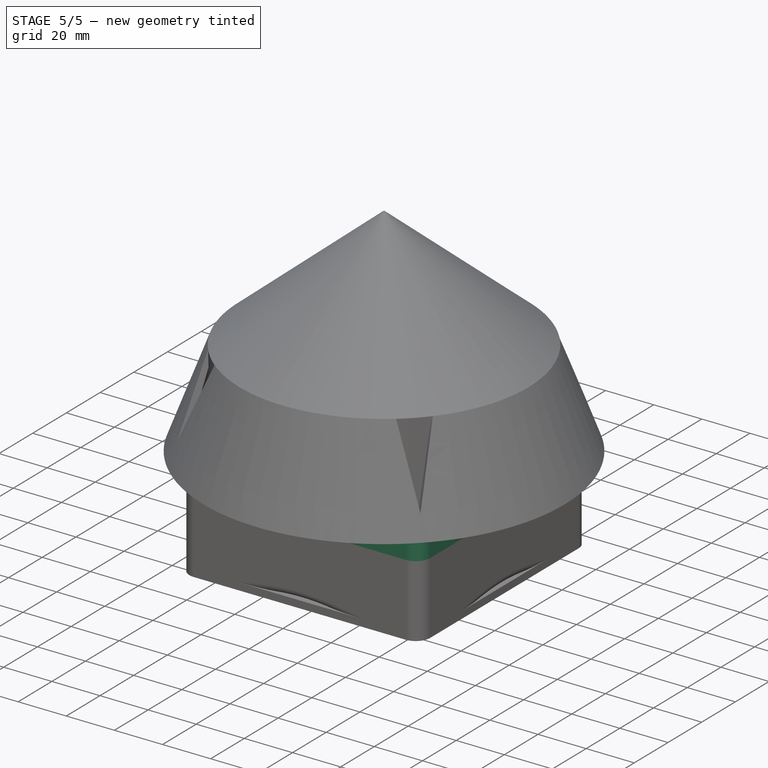
[diagram: stage 5 of 5 — iso view after this stage's code; geometry added in this stage tinted green]
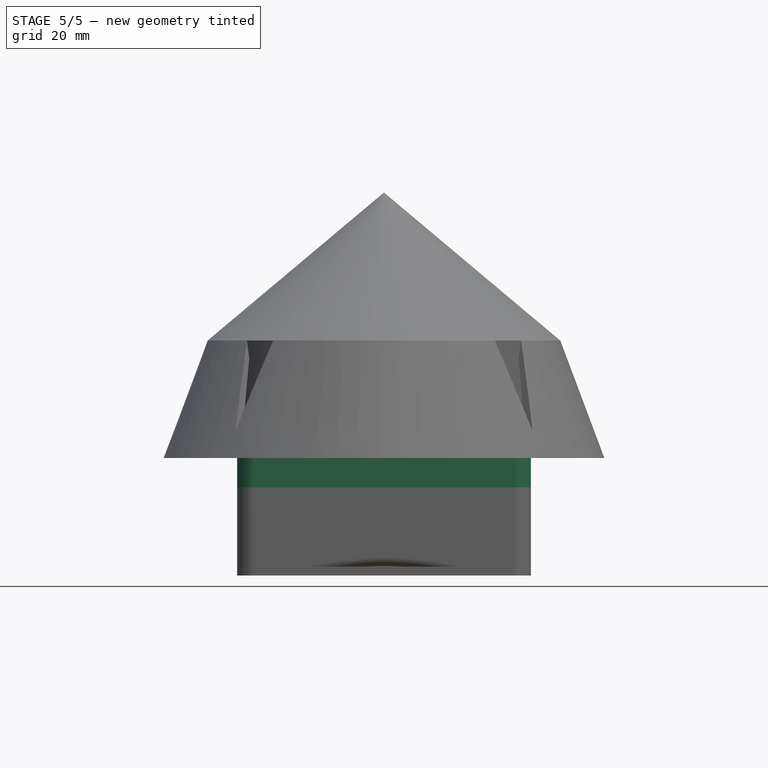
[diagram: stage 5 of 5 — front view after this stage's code; geometry added in this stage tinted green]
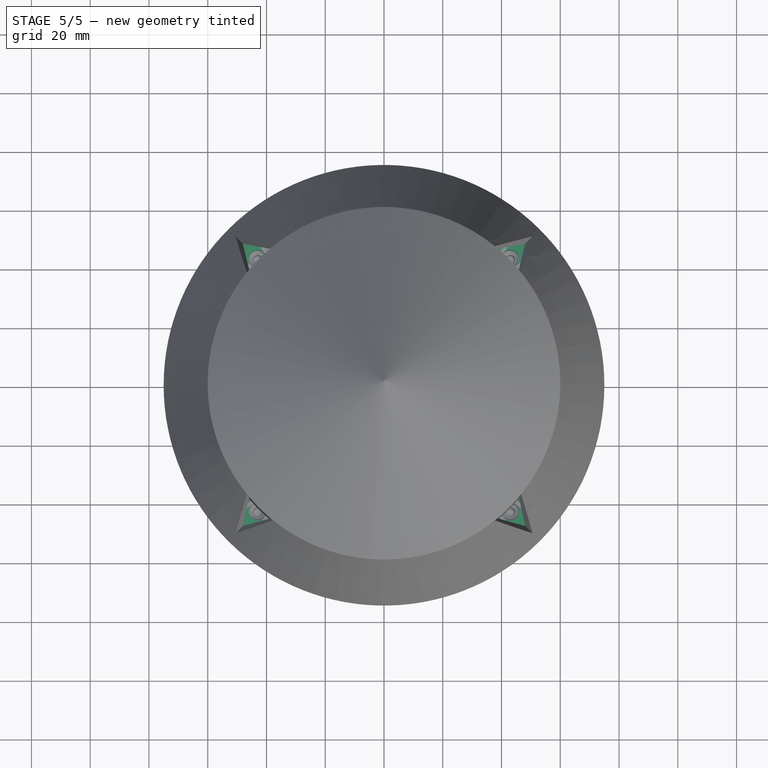
[diagram: stage 5 of 5 — top view after this stage's code; geometry added in this stage tinted green]
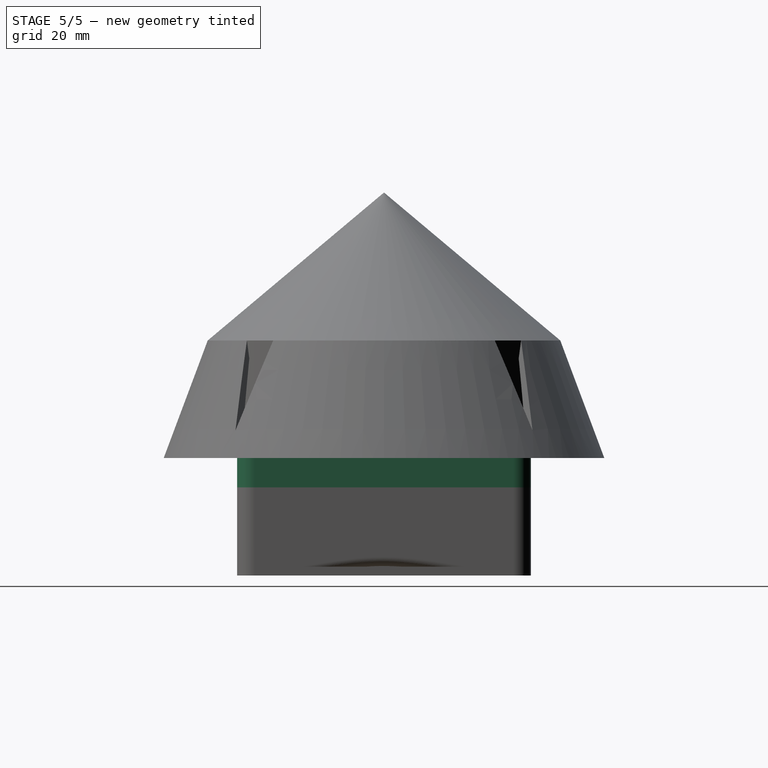
[diagram: stage 5 of 5 — right view after this stage's code; geometry added in this stage tinted green]
FEATURE [Sketcher::SketchObject] Sketch
  FullyConstrained = false
  MapMode = 5
  Support = -> [XY_Plane]
  sketch-geometry (4):
    g0: LineSegment StartX=-50 StartY=50 StartZ=0 EndX=50 EndY=50 EndZ=0
    g1: LineSegment StartX=50 StartY=50 StartZ=0 EndX=50 EndY=-50 EndZ=0
    g2: LineSegment StartX=50 StartY=-50 StartZ=0 EndX=-50 EndY=-50 EndZ=0
    g3: LineSegment StartX=-50 StartY=-50 StartZ=0 EndX=-50 EndY=50 EndZ=0
  constraints (12):
    c: Coincident(g0,g1)
    c: Coincident(g1,g2)
    c: Coincident(g2,g3)
    c: Coincident(g3,g0)
    c: Horizontal(g0)
    c: Horizontal(g2)
    c: Vertical(g1)
    c: Vertical(g3)
    c: DistanceX(g0,g0) = 100
    c: DistanceY(g1,g1) = 100
    c: DistanceX(g2,g-1) = 50
    c: DistanceY(g1,g-1) = 50
FEATURE [PartDesign::Pad] Pad
  AllowMultiFace = false
  Direction = (1,1,1)
  Length = 10
  Length2 = 100
  Profile = -> Sketch
  Type = 0
FEATURE [Sketcher::SketchObject] Sketch001
  FullyConstrained = false
  MapMode = 5
  Placement = pos=(0,0,10) rot=(0,0,1;0rad)
  Support = -> [Pad]
  sketch-geometry (1):
    g0: Circle CenterX=0 CenterY=0 CenterZ=0 NormalX=0 NormalY=0 NormalZ=1 AngleXU=0 Radius=40
  constraints (2):
    c: Coincident(g0,g-1)
    c: Diameter(g0) = 80
FEATURE [PartDesign::Pad] Pad001
  AllowMultiFace = false
  BaseFeature = -> Pad
  Direction = (1,1,1)
  Length = 30
  Length2 = 100
  Profile = -> Sketch001
  Type = 0
FEATURE [Sketcher::SketchObject] Sketch002
  FullyConstrained = false
  MapMode = 5
  Placement = pos=(0,0,40) rot=(0,0,1;0rad)
  Support = -> [Pad001]
  sketch-geometry (1):
    g0: Circle CenterX=0 CenterY=0 CenterZ=0 NormalX=0 NormalY=0 NormalZ=1 AngleXU=0 Radius=38
  constraints (2):
    c: Coincident(g0,g-1)
    c: Diameter(g0) = 76
FEATURE [PartDesign::Pocket] Pocket
  AllowMultiFace = false
  BaseFeature = -> Pad001
  Length = 55
  Length2 = 100
  Profile = -> Sketch002
  Type = 0
FEATURE [Sketcher::SketchObject] Sketch003
  FullyConstrained = false
  MapMode = 5
  Placement = pos=(0,0,0) rot=(1,0,0;3.14159rad)
  Support = -> [Pocket]
  sketch-geometry (4):
    g0: Circle CenterX=-36 CenterY=36 CenterZ=0 NormalX=0 NormalY=0 NormalZ=1 AngleXU=0 Radius=3
    g1: Circle CenterX=36 CenterY=36 CenterZ=0 NormalX=0 NormalY=0 NormalZ=1 AngleXU=0 Radius=3
    g2: Circle CenterX=36 CenterY=-36 CenterZ=0 NormalX=0 NormalY=0 NormalZ=1 AngleXU=0 Radius=3
    g3: Circle CenterX=-36 CenterY=-36 CenterZ=0 NormalX=0 NormalY=0 NormalZ=1 AngleXU=0 Radius=3
  constraints (12):
    c: Diameter(g0) = 6
    c: Diameter(g1) = 6
    c: Diameter(g3) = 6
    c: Diameter(g2) = 6
    c: DistanceX(g0,g-1) = 36
    c: DistanceX(g-1,g1) = 36
    c: DistanceX(g3,g-1) = 36
    c: DistanceX(g-1,g2) = 36
    c: DistanceY(g-1,g0) = 36
    c: DistanceY(g-1,g1) = 36
    c: DistanceY(g3,g-1) = 36
    c: DistanceY(g2,g-1) = 36
FEATURE [PartDesign::Pocket] Pocket001
  AllowMultiFace = false
  BaseFeature = -> Pocket
  Length = 10
  Length2 = 100
  Profile = -> Sketch003
  Type = 0
FEATURE [Sketcher::SketchObject] Sketch004
  ExternalGeometry = -> [Pocket001]
  FullyConstrained = false
  MapMode = 5
  Placement = pos=(0,0,0) rot=(1,0,0;3.14159rad)
  Support = -> [Pocket001]
  sketch-geometry (4):
    g0: Circle CenterX=-43 CenterY=43 CenterZ=0 NormalX=0 NormalY=0 NormalZ=1 AngleXU=0 Radius=3
    g1: Circle CenterX=43 CenterY=43 CenterZ=0 NormalX=0 NormalY=0 NormalZ=1 AngleXU=0 Radius=3
    g2: Circle CenterX=43 CenterY=-43 CenterZ=0 NormalX=0 NormalY=0 NormalZ=1 AngleXU=0 Radius=3
    g3: Circle CenterX=-43 CenterY=-43 CenterZ=0 NormalX=0 NormalY=0 NormalZ=1 AngleXU=0 Radius=3
  constraints (12):
    c: Diameter(g0) = 6
    c: Diameter(g1) = 6
    c: Diameter(g2) = 6
    c: Diameter(g3) = 6
    c: DistanceX(g0,g-3) = 7
    c: DistanceY(g-3,g0) = 7
    c: DistanceY(g-4,g1) = 7
    c: DistanceX(g-4,g1) = 7
    c: DistanceX(g-5,g2) = 7
    c: DistanceY(g2,g-5) = 7
    c: DistanceY(g3,g-6) = 7
    c: DistanceX(g3,g-6) = 7
FEATURE [PartDesign::Pocket] Pocket002
  AllowMultiFace = false
  BaseFeature = -> Pocket001
  Length = 10
  Length2 = 100
  Profile = -> Sketch004
  Type = 0
FEATURE [Sketcher::SketchObject] Sketch005
  ExternalGeometry = -> [Pocket002]
  FullyConstrained = false
  MapMode = 5
  Placement = pos=(0,0,10) rot=(0,0,1;0rad)
  Support = -> [Pocket002]
  sketch-geometry (4):
    g0: Circle CenterX=-36 CenterY=36 CenterZ=0 NormalX=0 NormalY=0 NormalZ=1 AngleXU=0 Radius=5
    g1: Circle CenterX=36 CenterY=36 CenterZ=0 NormalX=0 NormalY=0 NormalZ=1 AngleXU=0 Radius=5
    g2: Circle CenterX=36 CenterY=-36 CenterZ=0 NormalX=0 NormalY=0 NormalZ=1 AngleXU=0 Radius=5
    g3: Circle CenterX=-36 CenterY=-36 CenterZ=0 NormalX=0 NormalY=0 NormalZ=1 AngleXU=0 Radius=5
  constraints (8):
    c: Coincident(g0,g-3)
    c: Coincident(g1,g-4)
    c: Coincident(g2,g-5)
    c: Coincident(g3,g-6)
    c: Diameter(g0) = 10
    c: Diameter(g1) = 10
    c: Diameter(g2) = 10
    c: Diameter(g3) = 10
FEATURE [PartDesign::Pocket] Pocket003
  AllowMultiFace = false
  BaseFeature = -> Pocket002
  Length = 5
  Length2 = 100
  Profile = -> Sketch005
  Type = 0
FEATURE [Sketcher::SketchObject] Sketch018
  ExternalGeometry = -> [Revolution002]
  FullyConstrained = false
  MapMode = 5
  Placement = pos=(-1e-16,0,0) rot=(-0.57735,0.57735,0.57735;4.18879rad)
  Support = -> [Revolution002]
  sketch-geometry (4):
    g0: LineSegment StartX=35 StartY=42 StartZ=0 EndX=37 EndY=42 EndZ=0
    g1: LineSegment StartX=37 StartY=42 StartZ=0 EndX=37 EndY=37 EndZ=0
    g2: LineSegment StartX=37 StartY=37 StartZ=0 EndX=35 EndY=37 EndZ=0
    g3: LineSegment StartX=35 StartY=37 StartZ=0 EndX=35 EndY=42 EndZ=0
  constraints (11):
    c: Coincident(g0,g1)
    c: Coincident(g1,g2)
    c: Coincident(g2,g3)
    c: Coincident(g3,g0)
    c: Horizontal(g0)
    c: Horizontal(g2)
    c: Vertical(g1)
    c: Vertical(g3)
    c: Coincident(g0,g-3)
    c: PointOnObject(g1,g-4)
    c: DistanceY(g3,g3) = 5
FEATURE [PartDesign::PolarPattern] PolarPattern004
  Angle = 360
  Axis = -> Z_Axis002
  BaseFeature = -> Revolution002
  Occurrences = 8
  Originals = -> [Revolution002]
FEATURE [PartDesign::Revolution] Revolution003
  AllowMultiFace = false
  Angle = 10
  Axis = (-2e-16,0,1)
  Base = (0,0,0)
  BaseFeature = -> PolarPattern004
  Profile = -> Sketch018
  ReferenceAxis = -> Sketch018 [V_Axis]
  Reversed = true
FEATURE [PartDesign::PolarPattern] PolarPattern005
  Angle = 360
  Axis = -> Z_Axis002
  BaseFeature = -> Revolution003
  Occurrences = 8
  Originals = -> [Revolution003]
FEATURE [PartDesign::Fillet] Fillet
  Base = -> Pocket003 [Edge5,Edge1,Edge2,Edge8]
  BaseFeature = -> Pocket003
  Radius = 6
  SupportTransform = false
FEATURE [PartDesign::Body] Body  label="plate"
  Group = -> [Sketch,Pad,Sketch001,Pad001,Sketch002,Pocket,Sketch003,Pocket001,Sketch004,Pocket002,Sketch005,Pocket003,Fillet]
  Origin = -> Origin
  Tip = -> Fillet
FEATURE [PartDesign::Chamfer] Chamfer001
  Angle = 45
  Base = -> PolarPattern005 [Edge242,Edge310,Edge246,Edge251,Edge264,Edge297,Edge292,Edge277]
  BaseFeature = -> PolarPattern005
  ChamferType = 0
  FlipDirection = false
  Size = 2
  Size2 = 1
  SupportTransform = false
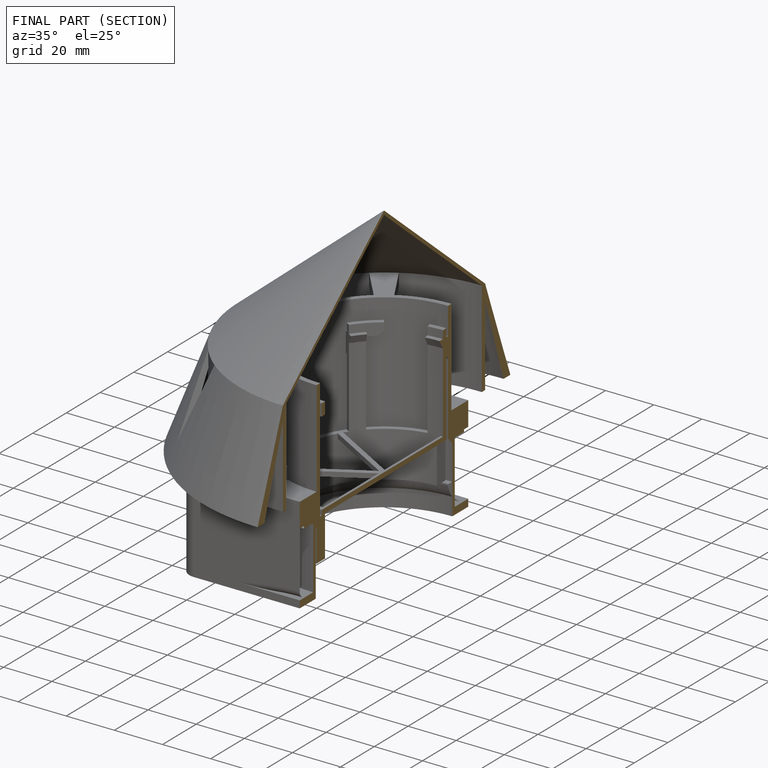
[diagram: finished part — half-section view (interior)]
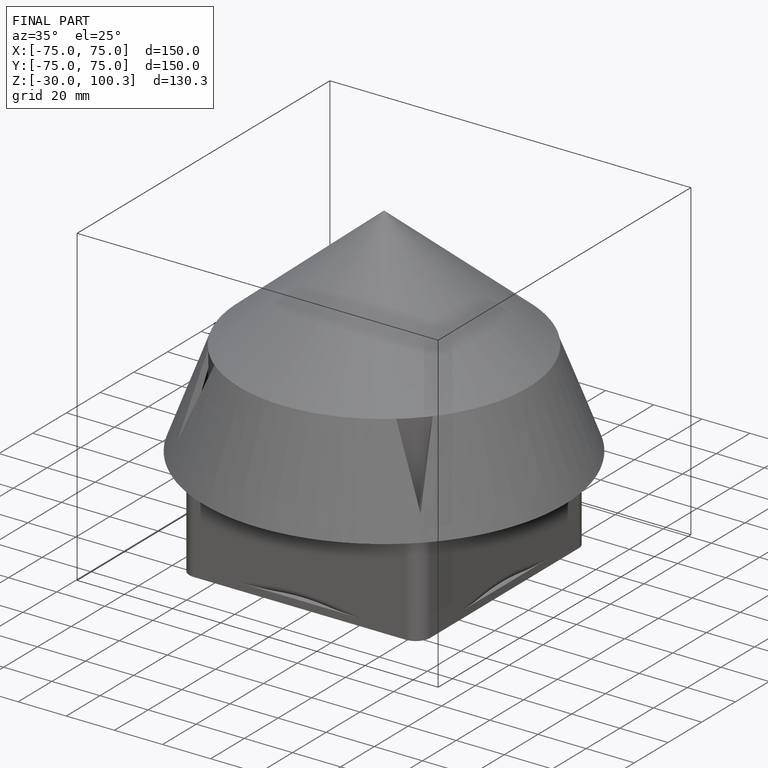
[diagram: finished part — iso view with bounding-box wireframe]
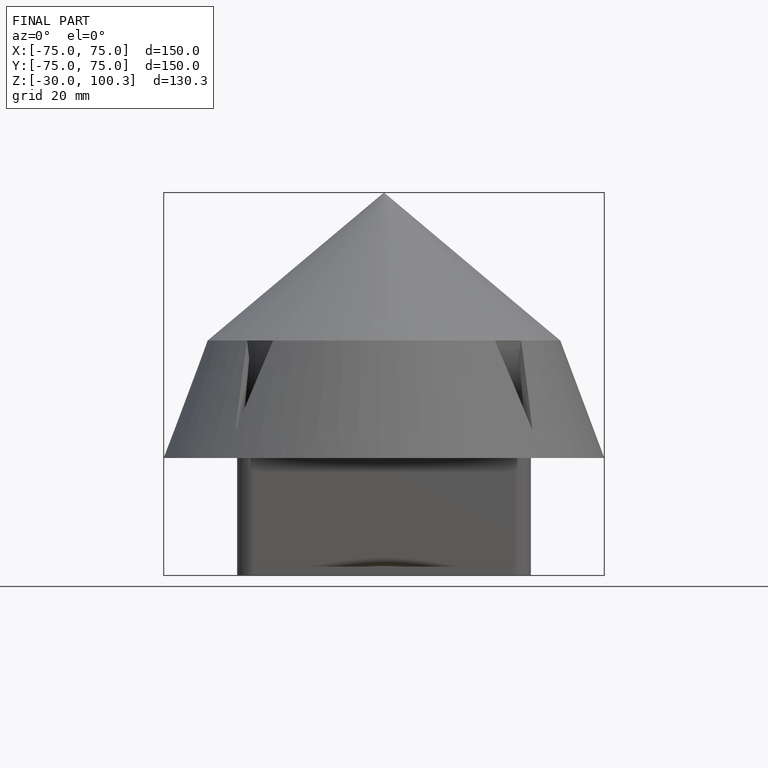
[diagram: finished part — front view with bounding-box wireframe]
